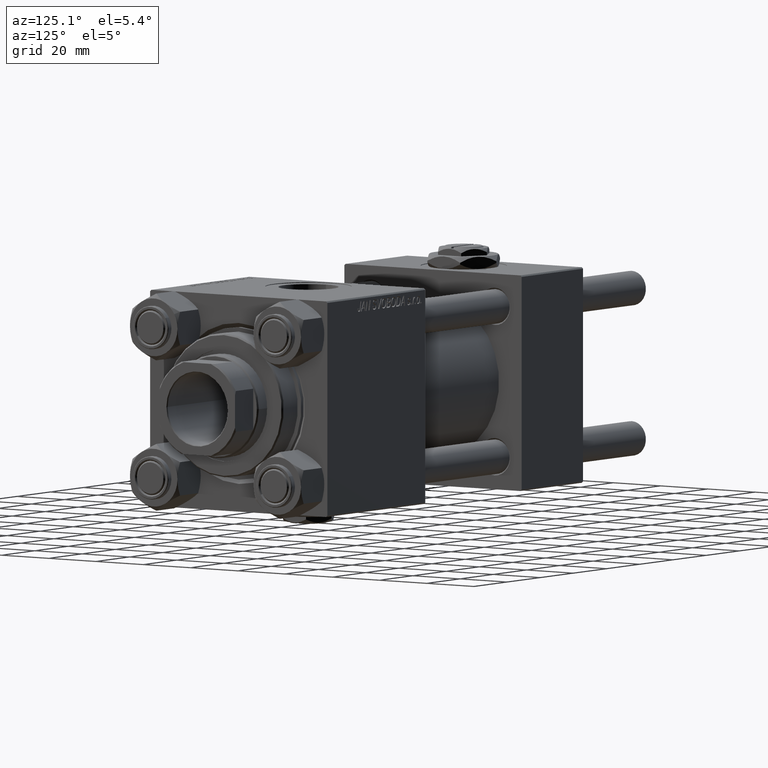
[diagram: clean part render]
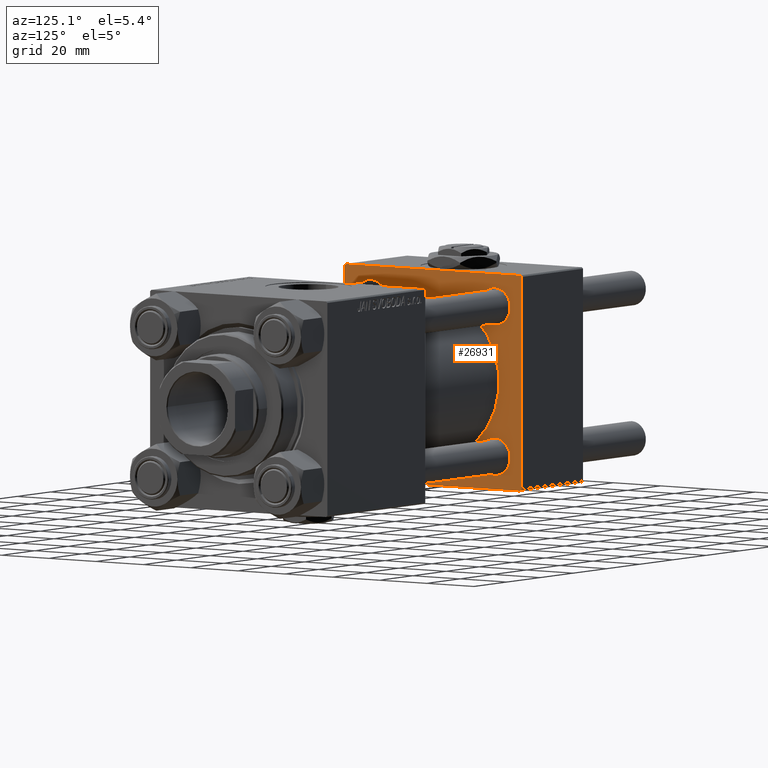
[diagram: same view with one face highlighted and labeled with its STEP entity id]
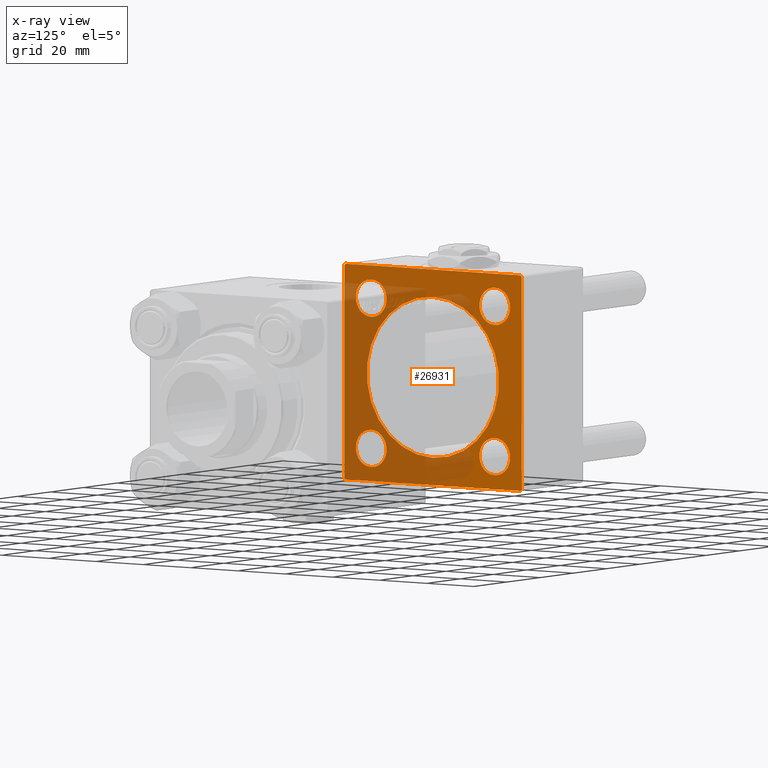
[diagram: x-ray of the same camera — body ghosted, the highlighted face saturated]
A machine part, auxiliary view. The second image highlights one B-rep face of the part: STEP entity #26931.
The next image is the same camera in x-ray: the body ghosted, the highlighted face saturated — about 48% of this face is hidden behind the body in this view.
In plain terms, the highlighted planar face has unit normal (-1, 0, 0).
Its self-contained STEP definition (entity closure, byte-faithful):
#383 = AXIS2_PLACEMENT_3D ( 'NONE', #41748, #17941, #5898 ) ;
#422 = LINE ( 'NONE', #9039, #47308 ) ;
#623 = CARTESIAN_POINT ( 'NONE',  ( 37.00000000000000000, 36.99999999999999289, 37.50000000000000000 ) ) ;
#764 = CARTESIAN_POINT ( 'NONE',  ( 37.00000000000000000, 26.14999999999999858, 26.15000000000000213 ) ) ;
#1174 = ORIENTED_EDGE ( 'NONE', *, *, #4593, .F. ) ;
#1352 = CIRCLE ( 'NONE', #18894, 6.500000000000002665 ) ;
#1561 = VERTEX_POINT ( 'NONE', #19592 ) ;
#1857 = DIRECTION ( 'NONE',  ( 0.000000000000000000, 9.251858538542971581E-17, -1.000000000000000000 ) ) ;
#2890 = CIRCLE ( 'NONE', #383, 6.500000000000030198 ) ;
#3051 = ORIENTED_EDGE ( 'NONE', *, *, #9699, .F. ) ;
#3605 = VECTOR ( 'NONE', #29184, 1000.000000000000000 ) ;
#3636 = FACE_BOUND ( 'NONE', #42106, .T. ) ;
#4262 = AXIS2_PLACEMENT_3D ( 'NONE', #30820, #18800, #46811 ) ;
#4593 = EDGE_CURVE ( 'NONE', #24941, #26404, #35136, .T. ) ;
#5064 = CARTESIAN_POINT ( 'NONE',  ( 37.00000000000000000, 26.14999999999999858, 19.64999999999997016 ) ) ;
#5841 = DIRECTION ( 'NONE',  ( -1.000000000000000000, 0.000000000000000000, -0.000000000000000000 ) ) ;
#5898 = DIRECTION ( 'NONE',  ( 0.000000000000000000, 0.000000000000000000, 1.000000000000000000 ) ) ;
#5983 = VECTOR ( 'NONE', #1857, 1000.000000000000000 ) ;
#5994 = EDGE_CURVE ( 'NONE', #15350, #35288, #17476, .T. ) ;
#6753 = DIRECTION ( 'NONE',  ( 0.000000000000000000, 0.000000000000000000, 1.000000000000000000 ) ) ;
#7132 = AXIS2_PLACEMENT_3D ( 'NONE', #25295, #41255, #29473 ) ;
#7180 = ORIENTED_EDGE ( 'NONE', *, *, #25139, .T. ) ;
#7424 = ORIENTED_EDGE ( 'NONE', *, *, #39087, .T. ) ;
#7510 = DIRECTION ( 'NONE',  ( 1.000000000000000000, -0.000000000000000000, 0.000000000000000000 ) ) ;
#7958 = CARTESIAN_POINT ( 'NONE',  ( 37.00000000000000000, 37.49999999999999289, 37.50000000000000000 ) ) ;
#8078 = VERTEX_POINT ( 'NONE', #14184 ) ;
#8256 = CARTESIAN_POINT ( 'NONE',  ( 37.00000000000000000, 26.14999999999999858, 32.65000000000004121 ) ) ;
#8798 = CARTESIAN_POINT ( 'NONE',  ( 37.00000000000000000, -37.00000000000002132, -37.50000000000000711 ) ) ;
#8846 = VERTEX_POINT ( 'NONE', #37484 ) ;
#9039 = CARTESIAN_POINT ( 'NONE',  ( 37.00000000000000000, 37.49999999999999289, 37.50000000000000000 ) ) ;
#9354 = DIRECTION ( 'NONE',  ( -0.000000000000000000, -0.7071067811865474617, -0.7071067811865474617 ) ) ;
#9699 = EDGE_CURVE ( 'NONE', #26404, #24941, #43692, .T. ) ;
#10091 = VERTEX_POINT ( 'NONE', #47245 ) ;
#10293 = EDGE_CURVE ( 'NONE', #43607, #45409, #23639, .T. ) ;
#10372 = ORIENTED_EDGE ( 'NONE', *, *, #25333, .T. ) ;
#10517 = CARTESIAN_POINT ( 'NONE',  ( 37.00000000000000000, 37.49999999999999289, -36.99999999999998579 ) ) ;
#10780 = ORIENTED_EDGE ( 'NONE', *, *, #37297, .T. ) ;
#11013 = AXIS2_PLACEMENT_3D ( 'NONE', #38686, #22977, #6753 ) ;
#11052 = CIRCLE ( 'NONE', #46182, 6.500000000000030198 ) ;
#11117 = LINE ( 'NONE', #23168, #39732 ) ;
#11349 = AXIS2_PLACEMENT_3D ( 'NONE', #15410, #47618, #11474 ) ;
#11474 = DIRECTION ( 'NONE',  ( -0.000000000000000000, 0.000000000000000000, 1.000000000000000000 ) ) ;
#11738 = EDGE_CURVE ( 'NONE', #51127, #13236, #25969, .T. ) ;
#12056 = EDGE_CURVE ( 'NONE', #35288, #43762, #12873, .T. ) ;
#12642 = VECTOR ( 'NONE', #15897, 1000.000000000000000 ) ;
#12873 = LINE ( 'NONE', #45824, #5983 ) ;
#13236 = VERTEX_POINT ( 'NONE', #51271 ) ;
#13437 = VERTEX_POINT ( 'NONE', #10517 ) ;
#13821 = AXIS2_PLACEMENT_3D ( 'NONE', #17903, #21573, #29413 ) ;
#14184 = CARTESIAN_POINT ( 'NONE',  ( 37.00000000000000000, 26.14999999999999858, -32.65000000000003411 ) ) ;
#14327 = EDGE_CURVE ( 'NONE', #16335, #8078, #11052, .T. ) ;
#14746 = ORIENTED_EDGE ( 'NONE', *, *, #40327, .T. ) ;
#15107 = CARTESIAN_POINT ( 'NONE',  ( 37.00000000000000000, -26.14999999999999147, -26.15000000000000924 ) ) ;
#15165 = CARTESIAN_POINT ( 'NONE',  ( 37.00000000000000000, 37.49999999999999289, -37.50000000000000000 ) ) ;
#15347 = ORIENTED_EDGE ( 'NONE', *, *, #5994, .T. ) ;
#15350 = VERTEX_POINT ( 'NONE', #25127 ) ;
#15385 = CARTESIAN_POINT ( 'NONE',  ( 37.00000000000000000, -26.14999999999999147, -19.65000000000000924 ) ) ;
#15410 = CARTESIAN_POINT ( 'NONE',  ( 37.00000000000000000, 0.000000000000000000, 0.000000000000000000 ) ) ;
#15499 = EDGE_LOOP ( 'NONE', ( #32794, #7180 ) ) ;
#15577 = VECTOR ( 'NONE', #24443, 1000.000000000000114 ) ;
#15709 = EDGE_CURVE ( 'NONE', #45160, #32389, #23008, .T. ) ;
#15881 = DIRECTION ( 'NONE',  ( 0.000000000000000000, 0.000000000000000000, 1.000000000000000000 ) ) ;
#15884 = DIRECTION ( 'NONE',  ( 0.000000000000000000, 0.000000000000000000, 1.000000000000000000 ) ) ;
#15897 = DIRECTION ( 'NONE',  ( 0.000000000000000000, 0.7071067811865524577, -0.7071067811865426878 ) ) ;
#16335 = VERTEX_POINT ( 'NONE', #29317 ) ;
#16338 = ORIENTED_EDGE ( 'NONE', *, *, #30150, .F. ) ;
#16381 = DIRECTION ( 'NONE',  ( 0.000000000000000000, 0.000000000000000000, -1.000000000000000000 ) ) ;
#16700 = DIRECTION ( 'NONE',  ( 0.000000000000000000, 0.000000000000000000, 1.000000000000000000 ) ) ;
#16734 = DIRECTION ( 'NONE',  ( 0.000000000000000000, 0.000000000000000000, 1.000000000000000000 ) ) ;
#16888 = EDGE_CURVE ( 'NONE', #45409, #43607, #27731, .T. ) ;
#16896 = VERTEX_POINT ( 'NONE', #15385 ) ;
#17476 = LINE ( 'NONE', #28984, #46046 ) ;
#17850 = CARTESIAN_POINT ( 'NONE',  ( 37.00000000000000000, 0.000000000000000000, 28.00000000000000000 ) ) ;
#17884 = DIRECTION ( 'NONE',  ( 0.000000000000000000, 0.000000000000000000, 1.000000000000000000 ) ) ;
#17903 = CARTESIAN_POINT ( 'NONE',  ( 37.00000000000000000, -26.14999999999999147, -26.15000000000000924 ) ) ;
#17941 = DIRECTION ( 'NONE',  ( -1.000000000000000000, 0.000000000000000000, -0.000000000000000000 ) ) ;
#18338 = DIRECTION ( 'NONE',  ( 0.000000000000000000, -1.000000000000000000, -9.251858538542971581E-17 ) ) ;
#18374 = ORIENTED_EDGE ( 'NONE', *, *, #31167, .T. ) ;
#18800 = DIRECTION ( 'NONE',  ( 1.000000000000000000, -0.000000000000000000, 0.000000000000000000 ) ) ;
#18894 = AXIS2_PLACEMENT_3D ( 'NONE', #15107, #51236, #15881 ) ;
#19592 = CARTESIAN_POINT ( 'NONE',  ( 37.00000000000000000, 37.49999999999999289, 37.00000000000000000 ) ) ;
#19614 = FACE_BOUND ( 'NONE', #46486, .T. ) ;
#19869 = PLANE ( 'NONE',  #11349 ) ;
#20978 = AXIS2_PLACEMENT_3D ( 'NONE', #25989, #5841, #17884 ) ;
#21573 = DIRECTION ( 'NONE',  ( -1.000000000000000000, 0.000000000000000000, -0.000000000000000000 ) ) ;
#22759 = EDGE_LOOP ( 'NONE', ( #40459, #14746, #16338, #18374, #10780, #15347, #44001, #7424 ) ) ;
#22809 = AXIS2_PLACEMENT_3D ( 'NONE', #27137, #7510, #15884 ) ;
#22977 = DIRECTION ( 'NONE',  ( -1.000000000000000000, 0.000000000000000000, -0.000000000000000000 ) ) ;
#23008 = LINE ( 'NONE', #15165, #3605 ) ;
#23168 = CARTESIAN_POINT ( 'NONE',  ( 37.00000000000000000, 37.49999999999999289, -36.99999999999998579 ) ) ;
#23223 = CARTESIAN_POINT ( 'NONE',  ( 37.00000000000000000, -37.00000000000002132, -37.50000000000000711 ) ) ;
#23258 = FACE_BOUND ( 'NONE', #15499, .T. ) ;
#23639 = CIRCLE ( 'NONE', #36992, 6.500000000000030198 ) ;
#23659 = EDGE_CURVE ( 'NONE', #8078, #16335, #2890, .T. ) ;
#23776 = FACE_BOUND ( 'NONE', #35814, .T. ) ;
#23928 = LINE ( 'NONE', #623, #15577 ) ;
#24137 = ORIENTED_EDGE ( 'NONE', *, *, #14327, .T. ) ;
#24293 = CARTESIAN_POINT ( 'NONE',  ( 37.00000000000000000, 26.14999999999999858, -26.15000000000000213 ) ) ;
#24443 = DIRECTION ( 'NONE',  ( 0.000000000000000000, -0.7071067811865474617, 0.7071067811865474617 ) ) ;
#24659 = CARTESIAN_POINT ( 'NONE',  ( 37.00000000000000000, -37.50000000000000711, 36.99999999999999289 ) ) ;
#24941 = VERTEX_POINT ( 'NONE', #28572 ) ;
#25127 = CARTESIAN_POINT ( 'NONE',  ( 37.00000000000000000, -37.00000000000000711, 37.49999999999999289 ) ) ;
#25139 = EDGE_CURVE ( 'NONE', #13236, #51127, #34741, .T. ) ;
#25295 = CARTESIAN_POINT ( 'NONE',  ( 37.00000000000000000, -26.14999999999999147, 26.15000000000000924 ) ) ;
#25333 = EDGE_CURVE ( 'NONE', #16896, #8846, #33051, .T. ) ;
#25969 = CIRCLE ( 'NONE', #20978, 6.500000000000008882 ) ;
#25989 = CARTESIAN_POINT ( 'NONE',  ( 37.00000000000000000, -26.14999999999999147, 26.15000000000000924 ) ) ;
#26404 = VERTEX_POINT ( 'NONE', #17850 ) ;
#26931 = ADVANCED_FACE ( 'NONE', ( #3636, #19614, #23258, #39226, #23776, #39746 ), #19869, .F. ) ;
#27137 = CARTESIAN_POINT ( 'NONE',  ( 37.00000000000000000, 0.000000000000000000, 0.000000000000000000 ) ) ;
#27731 = CIRCLE ( 'NONE', #11013, 6.500000000000030198 ) ;
#28493 = DIRECTION ( 'NONE',  ( -1.000000000000000000, 0.000000000000000000, -0.000000000000000000 ) ) ;
#28572 = CARTESIAN_POINT ( 'NONE',  ( 37.00000000000000000, 3.429011037612588487E-15, -28.00000000000000000 ) ) ;
#28984 = CARTESIAN_POINT ( 'NONE',  ( 37.00000000000000000, -37.50000000000000711, 36.99999999999999289 ) ) ;
#29184 = DIRECTION ( 'NONE',  ( 0.000000000000000000, -1.000000000000000000, -9.251858538542972814E-17 ) ) ;
#29317 = CARTESIAN_POINT ( 'NONE',  ( 37.00000000000000000, 26.14999999999999858, -19.64999999999997371 ) ) ;
#29413 = DIRECTION ( 'NONE',  ( 0.000000000000000000, 0.000000000000000000, 1.000000000000000000 ) ) ;
#29473 = DIRECTION ( 'NONE',  ( 0.000000000000000000, 0.000000000000000000, 1.000000000000000000 ) ) ;
#30150 = EDGE_CURVE ( 'NONE', #1561, #13437, #422, .T. ) ;
#30820 = CARTESIAN_POINT ( 'NONE',  ( 37.00000000000000000, 0.000000000000000000, 0.000000000000000000 ) ) ;
#30941 = CARTESIAN_POINT ( 'NONE',  ( 37.00000000000000000, -37.50000000000000000, -37.00000000000003553 ) ) ;
#31167 = EDGE_CURVE ( 'NONE', #1561, #10091, #23928, .T. ) ;
#31178 = ORIENTED_EDGE ( 'NONE', *, *, #23659, .T. ) ;
#32059 = DIRECTION ( 'NONE',  ( -0.000000000000000000, 0.7071067811865474617, 0.7071067811865474617 ) ) ;
#32389 = VERTEX_POINT ( 'NONE', #8798 ) ;
#32794 = ORIENTED_EDGE ( 'NONE', *, *, #11738, .T. ) ;
#33051 = CIRCLE ( 'NONE', #13821, 6.500000000000002665 ) ;
#34741 = CIRCLE ( 'NONE', #7132, 6.500000000000008882 ) ;
#35136 = CIRCLE ( 'NONE', #4262, 28.00000000000000000 ) ;
#35288 = VERTEX_POINT ( 'NONE', #24659 ) ;
#35779 = LINE ( 'NONE', #23223, #12642 ) ;
#35814 = EDGE_LOOP ( 'NONE', ( #3051, #1174 ) ) ;
#36013 = ORIENTED_EDGE ( 'NONE', *, *, #16888, .T. ) ;
#36992 = AXIS2_PLACEMENT_3D ( 'NONE', #764, #28493, #16734 ) ;
#37297 = EDGE_CURVE ( 'NONE', #10091, #15350, #43816, .T. ) ;
#37484 = CARTESIAN_POINT ( 'NONE',  ( 37.00000000000000000, -26.14999999999999147, -32.65000000000001279 ) ) ;
#38686 = CARTESIAN_POINT ( 'NONE',  ( 37.00000000000000000, 26.14999999999999858, 26.15000000000000213 ) ) ;
#39087 = EDGE_CURVE ( 'NONE', #43762, #32389, #35779, .T. ) ;
#39226 = FACE_BOUND ( 'NONE', #47453, .T. ) ;
#39732 = VECTOR ( 'NONE', #32059, 1000.000000000000114 ) ;
#39746 = FACE_OUTER_BOUND ( 'NONE', #22759, .T. ) ;
#40004 = DIRECTION ( 'NONE',  ( -1.000000000000000000, 0.000000000000000000, -0.000000000000000000 ) ) ;
#40327 = EDGE_CURVE ( 'NONE', #45160, #13437, #11117, .T. ) ;
#40459 = ORIENTED_EDGE ( 'NONE', *, *, #15709, .F. ) ;
#41255 = DIRECTION ( 'NONE',  ( -1.000000000000000000, 0.000000000000000000, -0.000000000000000000 ) ) ;
#41674 = VECTOR ( 'NONE', #18338, 1000.000000000000000 ) ;
#41748 = CARTESIAN_POINT ( 'NONE',  ( 37.00000000000000000, 26.14999999999999858, -26.15000000000000213 ) ) ;
#42106 = EDGE_LOOP ( 'NONE', ( #43036, #10372 ) ) ;
#43036 = ORIENTED_EDGE ( 'NONE', *, *, #43211, .T. ) ;
#43211 = EDGE_CURVE ( 'NONE', #8846, #16896, #1352, .T. ) ;
#43607 = VERTEX_POINT ( 'NONE', #5064 ) ;
#43692 = CIRCLE ( 'NONE', #22809, 28.00000000000000000 ) ;
#43762 = VERTEX_POINT ( 'NONE', #30941 ) ;
#43816 = LINE ( 'NONE', #7958, #41674 ) ;
#44001 = ORIENTED_EDGE ( 'NONE', *, *, #12056, .T. ) ;
#44171 = CARTESIAN_POINT ( 'NONE',  ( 37.00000000000000000, 36.99999999999997868, -37.50000000000000000 ) ) ;
#45160 = VERTEX_POINT ( 'NONE', #44171 ) ;
#45409 = VERTEX_POINT ( 'NONE', #8256 ) ;
#45824 = CARTESIAN_POINT ( 'NONE',  ( 37.00000000000000000, -37.50000000000000711, 37.49999999999999289 ) ) ;
#46028 = CARTESIAN_POINT ( 'NONE',  ( 37.00000000000000000, -26.14999999999999147, 19.65000000000000213 ) ) ;
#46046 = VECTOR ( 'NONE', #9354, 1000.000000000000114 ) ;
#46182 = AXIS2_PLACEMENT_3D ( 'NONE', #24293, #40004, #16700 ) ;
#46486 = EDGE_LOOP ( 'NONE', ( #31178, #24137 ) ) ;
#46811 = DIRECTION ( 'NONE',  ( 0.000000000000000000, 0.000000000000000000, 1.000000000000000000 ) ) ;
#47245 = CARTESIAN_POINT ( 'NONE',  ( 37.00000000000000000, 36.99999999999999289, 37.50000000000000000 ) ) ;
#47308 = VECTOR ( 'NONE', #16381, 1000.000000000000000 ) ;
#47453 = EDGE_LOOP ( 'NONE', ( #49307, #36013 ) ) ;
#47618 = DIRECTION ( 'NONE',  ( -1.000000000000000000, 0.000000000000000000, -0.000000000000000000 ) ) ;
#49307 = ORIENTED_EDGE ( 'NONE', *, *, #10293, .T. ) ;
#51127 = VERTEX_POINT ( 'NONE', #46028 ) ;
#51236 = DIRECTION ( 'NONE',  ( -1.000000000000000000, 0.000000000000000000, -0.000000000000000000 ) ) ;
#51271 = CARTESIAN_POINT ( 'NONE',  ( 37.00000000000000000, -26.14999999999999147, 32.65000000000001990 ) ) ;